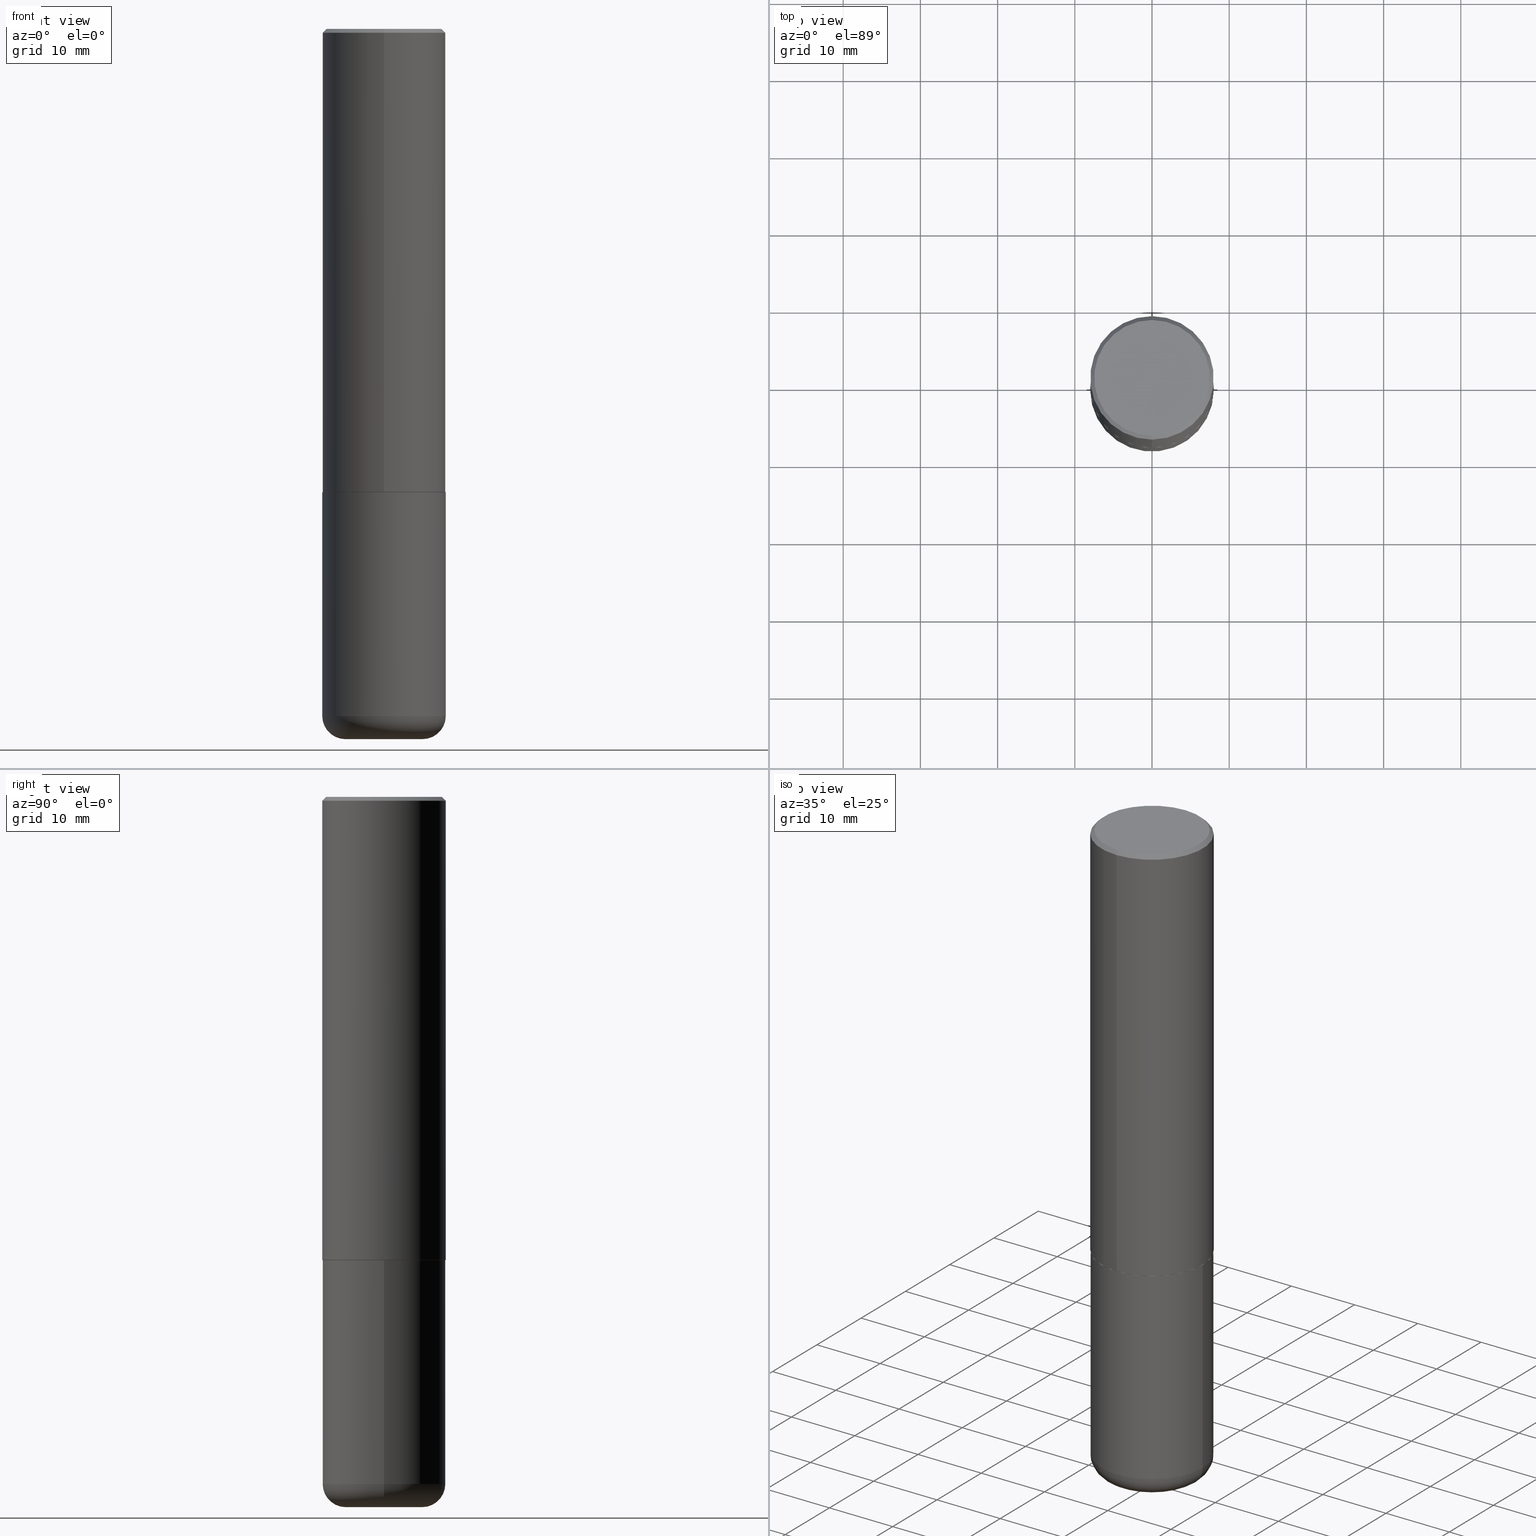
[diagram: canonical four-view strip — front | top / right | iso, engineering-drawing reading convention]
A machine part, canonical four-view strip (front | top / right | iso — engineering-drawing reading convention). The complete STEP part file that produces these views, byte-faithful:
ISO-10303-21;
HEADER;
FILE_DESCRIPTION (( 'STEP AP203' ),
    '1' );
FILE_NAME ('46645.STEP',
    '2024-03-05T02:24:14',
    ( '' ),
    ( '' ),
    'SwSTEP 2.0',
    'SolidWorks 2023',
    '' );
FILE_SCHEMA (( 'CONFIG_CONTROL_DESIGN' ));
ENDSEC;

DATA;
#1 = ORIENTED_EDGE ( 'NONE', *, *, #219, .T. ) ;
#2 = VECTOR ( 'NONE', #213, 39.37007874015748143 ) ;
#3 = ORIENTED_EDGE ( 'NONE', *, *, #145, .F. ) ;
#4 = FACE_OUTER_BOUND ( 'NONE', #171, .T. ) ;
#5 = DIRECTION ( 'NONE',  ( -2.446834136232167657E-29, 3.489526108506037109E-15, 1.000000000000000000 ) ) ;
#6 = EDGE_CURVE ( 'NONE', #330, #175, #328, .T. ) ;
#7 = CONICAL_SURFACE ( 'NONE', #73, 0.3149500000000000077, 0.7853981633974471688 ) ;
#8 = PERSON_AND_ORGANIZATION ( #403, #180 ) ;
#9 = DIRECTION ( 'NONE',  ( -2.446834136232167096E-29, 3.489526108506037109E-15, 1.000000000000000000 ) ) ;
#10 = APPROVAL ( #120, 'UNSPECIFIED' ) ;
#11 = DIRECTION ( 'NONE',  ( -2.445468806185136597E-29, 3.491481338843145583E-15, 1.000000000000000000 ) ) ;
#12 = DIRECTION ( 'NONE',  ( -6.982962677686265922E-15, -1.000000000000000000, 3.489526108506037109E-15 ) ) ;
#13 = PERSON_AND_ORGANIZATION ( #403, #180 ) ;
#14 = DIRECTION ( 'NONE',  ( 1.000000000000000000, -6.982962677686273021E-15, 0.000000000000000000 ) ) ;
#15 = DIRECTION ( 'NONE',  ( 1.000000000000000000, -6.982962677686266711E-15, 0.000000000000000000 ) ) ;
#16 = DATE_AND_TIME ( #192, #271 ) ;
#17 = CARTESIAN_POINT ( 'NONE',  ( 5.776686413970529753E-29, -8.247577218615278049E-15, -2.362199999999999633 ) ) ;
#18 = CARTESIAN_POINT ( 'NONE',  ( 8.568678149992099474E-29, -1.223380146317249786E-14, -3.503899999999999793 ) ) ;
#19 = AXIS2_PLACEMENT_3D ( 'NONE', #115, #251, #396 ) ;
#20 = SECURITY_CLASSIFICATION ( '', '', #402 ) ;
#21 = ORIENTED_EDGE ( 'NONE', *, *, #219, .F. ) ;
#22 = DIRECTION ( 'NONE',  ( 1.000000000000000000, -6.982962677686266711E-15, 0.000000000000000000 ) ) ;
#23 = FACE_OUTER_BOUND ( 'NONE', #67, .T. ) ;
#24 = LINE ( 'NONE', #164, #405 ) ;
#25 = ORIENTED_EDGE ( 'NONE', *, *, #183, .F. ) ;
#26 = DIRECTION ( 'NONE',  ( -6.982962677686267499E-15, -1.000000000000000000, 3.489526108506037503E-15 ) ) ;
#27 = APPLICATION_CONTEXT ( 'configuration controlled 3d designs of mechanical parts and assemblies' ) ;
#28 = ADVANCED_FACE ( 'NONE', ( #34 ), #7, .T. ) ;
#29 = EDGE_LOOP ( 'NONE', ( #1, #327, #72, #163 ) ) ;
#30 = ORIENTED_EDGE ( 'NONE', *, *, #394, .T. ) ;
#31 = CARTESIAN_POINT ( 'NONE',  ( 0.1968500000000000250, -1.402074161239241202E-14, -3.621999999999999442 ) ) ;
#32 = ORIENTED_EDGE ( 'NONE', *, *, #80, .T. ) ;
#33 = EDGE_LOOP ( 'NONE', ( #305, #381, #383, #273 ) ) ;
#34 = FACE_OUTER_BOUND ( 'NONE', #300, .T. ) ;
#35 = MANIFOLD_SOLID_BREP ( 'Body-Move/Copy2[2]', #338 ) ;
#36 = MANIFOLD_SOLID_BREP ( 'Body-Move/Copy2[1]', #313 ) ;
#37 = ORIENTED_EDGE ( 'NONE', *, *, #132, .T. ) ;
#38 = EDGE_CURVE ( 'NONE', #206, #243, #204, .T. ) ;
#39 = VECTOR ( 'NONE', #5, 39.37007874015748143 ) ;
#40 = CIRCLE ( 'NONE', #113, 0.3149500000000000077 ) ;
#41 = DIRECTION ( 'NONE',  ( 1.000000000000000000, -6.982962677686267499E-15, 0.000000000000000000 ) ) ;
#42 = DIRECTION ( 'NONE',  ( -2.446834136232167657E-29, 3.489526108506037109E-15, 1.000000000000000000 ) ) ;
#43 = ADVANCED_FACE ( 'NONE', ( #53 ), #247, .T. ) ;
#44 = TOROIDAL_SURFACE ( 'NONE', #411, 0.1968500000000000250, 0.1180999999999997468 ) ;
#45 = CC_DESIGN_PERSON_AND_ORGANIZATION_ASSIGNMENT ( #186, #83, ( #118 ) ) ;
#46 = DIRECTION ( 'NONE',  ( -6.982962677686265922E-15, -1.000000000000000000, 3.469564049740290009E-15 ) ) ;
#47 = EDGE_CURVE ( 'NONE', #299, #357, #418, .T. ) ;
#48 = LINE ( 'NONE', #138, #134 ) ;
#49 = VECTOR ( 'NONE', #57, 39.37007874015748143 ) ;
#50 = CARTESIAN_POINT ( 'NONE',  ( 5.776686413970529753E-29, -8.247577218615278049E-15, -2.362199999999999633 ) ) ;
#51 = CARTESIAN_POINT ( 'NONE',  ( 2.199284095337289871E-15, 0.3149499999999999522, -0.02000000000000116615 ) ) ;
#52 = FACE_OUTER_BOUND ( 'NONE', #415, .T. ) ;
#53 = FACE_OUTER_BOUND ( 'NONE', #246, .T. ) ;
#54 = DIRECTION ( 'NONE',  ( -2.446834136232167376E-29, 3.489526108506037109E-15, 1.000000000000000000 ) ) ;
#55 = VERTEX_POINT ( 'NONE', #81 ) ;
#56 = SHAPE_DEFINITION_REPRESENTATION ( #208, #315 ) ;
#57 = DIRECTION ( 'NONE',  ( -2.445468806185136877E-29, 3.491481338843145188E-15, 1.000000000000000000 ) ) ;
#58 = CARTESIAN_POINT ( 'NONE',  ( 5.779911596607625621E-29, -8.242958573512960510E-15, -2.362199999999999633 ) ) ;
#59 = CIRCLE ( 'NONE', #94, 0.3149500000000000077 ) ;
#60 = CIRCLE ( 'NONE', #412, 0.3149500000000000077 ) ;
#61 = CARTESIAN_POINT ( 'NONE',  ( 2.237854346276465567E-15, 0.3149499999999920141, -2.361200000000000632 ) ) ;
#62 = DIRECTION ( 'NONE',  ( -2.445468806185136597E-29, 3.491481338843145583E-15, 1.000000000000000000 ) ) ;
#63 = DIRECTION ( 'NONE',  ( 6.982962677686265922E-15, 1.000000000000000000, -3.483117034309591132E-15 ) ) ;
#64 = EDGE_LOOP ( 'NONE', ( #355, #170, #37, #296 ) ) ;
#65 = CARTESIAN_POINT ( 'NONE',  ( -2.092108864420428031E-15, -0.2949499999999999345, 1.067075642926828942E-15 ) ) ;
#66 = CARTESIAN_POINT ( 'NONE',  ( 0.000000000000000000, 0.000000000000000000, 0.000000000000000000 ) ) ;
#67 = EDGE_LOOP ( 'NONE', ( #178, #75, #21, #131 ) ) ;
#68 = EDGE_CURVE ( 'NONE', #294, #96, #77, .T. ) ;
#69 =( CONVERSION_BASED_UNIT ( 'INCH', #207 ) LENGTH_UNIT ( ) NAMED_UNIT ( #74 ) );
#70 = ORIENTED_EDGE ( 'NONE', *, *, #394, .F. ) ;
#71 =( NAMED_UNIT ( * ) PLANE_ANGLE_UNIT ( ) SI_UNIT ( $, .RADIAN. ) );
#72 = ORIENTED_EDGE ( 'NONE', *, *, #47, .F. ) ;
#73 = AXIS2_PLACEMENT_3D ( 'NONE', #137, #98, #63 ) ;
#74 = DIMENSIONAL_EXPONENTS ( 1.000000000000000000, 0.000000000000000000, 0.000000000000000000, 0.000000000000000000, 0.000000000000000000, 0.000000000000000000, 0.000000000000000000 ) ;
#75 = ORIENTED_EDGE ( 'NONE', *, *, #110, .T. ) ;
#76 = DIRECTION ( 'NONE',  ( -2.445468806185136597E-29, 3.491481338843145583E-15, 1.000000000000000000 ) ) ;
#77 = CIRCLE ( 'NONE', #283, 0.3139500000000000068 ) ;
#78 = LOCAL_TIME ( 21, 24, 14.00000000000000000, #263 ) ;
#79 = PERSON_AND_ORGANIZATION ( #403, #180 ) ;
#80 = EDGE_CURVE ( 'NONE', #243, #142, #157, .T. ) ;
#81 = CARTESIAN_POINT ( 'NONE',  ( 0.3149499999999998967, -1.443308555850978615E-14, -3.503899999999999793 ) ) ;
#82 = AXIS2_PLACEMENT_3D ( 'NONE', #377, #256, #404 ) ;
#83 = PERSON_AND_ORGANIZATION_ROLE ( 'design_supplier' ) ;
#84 = CIRCLE ( 'NONE', #149, 0.3149500000000000077 ) ;
#85 = LINE ( 'NONE', #51, #226 ) ;
#86 = CC_DESIGN_PERSON_AND_ORGANIZATION_ASSIGNMENT ( #340, #259, ( #250 ) ) ;
#87 = COORDINATED_UNIVERSAL_TIME_OFFSET ( 5, 0, .BEHIND. ) ;
#88 = CYLINDRICAL_SURFACE ( 'NONE', #276, 0.3149500000000001743 ) ;
#89 = ORIENTED_EDGE ( 'NONE', *, *, #183, .T. ) ;
#90 = APPROVAL_ROLE ( '' ) ;
#91 = CARTESIAN_POINT ( 'NONE',  ( 2.234301632597693067E-15, 0.3139499999999917357, -2.362200000000000966 ) ) ;
#92 = FACE_OUTER_BOUND ( 'NONE', #304, .T. ) ;
#93 = CARTESIAN_POINT ( 'NONE',  ( 0.000000000000000000, 0.000000000000000000, 0.000000000000000000 ) ) ;
#94 = AXIS2_PLACEMENT_3D ( 'NONE', #146, #281, #324 ) ;
#95 = CONICAL_SURFACE ( 'NONE', #287, 0.3139500000000000068, 0.7853981633974141952 ) ;
#96 = VERTEX_POINT ( 'NONE', #91 ) ;
#97 = PERSON_AND_ORGANIZATION ( #403, #180 ) ;
#98 = DIRECTION ( 'NONE',  ( 2.446834136232167376E-29, -3.489526108506037109E-15, -1.000000000000000000 ) ) ;
#99 = FACE_OUTER_BOUND ( 'NONE', #33, .T. ) ;
#100 = CARTESIAN_POINT ( 'NONE',  ( 1.587752295914809676E-28, -2.593055815129891410E-15, -3.621999999999999886 ) ) ;
#101 = EDGE_LOOP ( 'NONE', ( #274, #389 ) ) ;
#102 = ORIENTED_EDGE ( 'NONE', *, *, #254, .T. ) ;
#103 = LINE ( 'NONE', #384, #2 ) ;
#104 = EDGE_LOOP ( 'NONE', ( #360, #89 ) ) ;
#105 = AXIS2_PLACEMENT_3D ( 'NONE', #140, #278, #391 ) ;
#106 = AXIS2_PLACEMENT_3D ( 'NONE', #354, #176, #245 ) ;
#107 = DIRECTION ( 'NONE',  ( 0.000000000000000000, 0.000000000000000000, 1.000000000000000000 ) ) ;
#108 = ORIENTED_EDGE ( 'NONE', *, *, #205, .T. ) ;
#109 = ORIENTED_EDGE ( 'NONE', *, *, #344, .F. ) ;
#110 = EDGE_CURVE ( 'NONE', #96, #173, #24, .T. ) ;
#111 = CARTESIAN_POINT ( 'NONE',  ( 2.129454468560426967E-15, 0.2949499999999999345, -9.913958084808819386E-16 ) ) ;
#112 = AXIS2_PLACEMENT_3D ( 'NONE', #400, #258, #26 ) ;
#113 = AXIS2_PLACEMENT_3D ( 'NONE', #409, #348, #128 ) ;
#114 = CARTESIAN_POINT ( 'NONE',  ( -0.1968500000000000250, -1.083509808782873928E-14, -3.503899999999999793 ) ) ;
#115 = CARTESIAN_POINT ( 'NONE',  ( 2.059624841783564063E-15, 0.2949499999999999345, -1.010315767092368542E-15 ) ) ;
#116 = LINE ( 'NONE', #252, #199 ) ;
#117 = AXIS2_PLACEMENT_3D ( 'NONE', #336, #211, #41 ) ;
#118 = PRODUCT_DEFINITION_FORMATION_WITH_SPECIFIED_SOURCE ( 'ANY', '', #395, .NOT_KNOWN. ) ;
#119 = APPROVAL ( #284, 'UNSPECIFIED' ) ;
#120 = APPROVAL_STATUS ( 'not_yet_approved' ) ;
#121 = FACE_OUTER_BOUND ( 'NONE', #139, .T. ) ;
#122 = ADVANCED_FACE ( 'NONE', ( #121 ), #326, .T. ) ;
#123 = COORDINATED_UNIVERSAL_TIME_OFFSET ( 5, 0, .BEHIND. ) ;
#124 = CARTESIAN_POINT ( 'NONE',  ( 0.3149500000000000077, -1.044686131395256792E-14, -2.362199999999999633 ) ) ;
#125 = CARTESIAN_POINT ( 'NONE',  ( -0.1968500000000000250, -1.062169457542108764E-14, -3.621999999999999442 ) ) ;
#126 = CC_DESIGN_DATE_AND_TIME_ASSIGNMENT ( #374, #376, ( #250 ) ) ;
#127 = DIRECTION ( 'NONE',  ( 1.000000000000000000, -6.982962677686269866E-15, 4.883557194083114022E-29 ) ) ;
#128 = DIRECTION ( 'NONE',  ( 1.000000000000000000, -6.982962677686263555E-15, 0.000000000000000000 ) ) ;
#129 = ORIENTED_EDGE ( 'NONE', *, *, #47, .T. ) ;
#130 = AXIS2_PLACEMENT_3D ( 'NONE', #136, #382, #417 ) ;
#131 = ORIENTED_EDGE ( 'NONE', *, *, #317, .F. ) ;
#132 = EDGE_CURVE ( 'NONE', #175, #55, #295, .T. ) ;
#133 = EDGE_LOOP ( 'NONE', ( #301, #32 ) ) ;
#134 = VECTOR ( 'NONE', #42, 39.37007874015748143 ) ;
#135 = CC_DESIGN_APPROVAL ( #10, ( #20 ) ) ;
#136 = CARTESIAN_POINT ( 'NONE',  ( 5.779911596607626742E-29, -8.242958573512960510E-15, -2.362200000000000077 ) ) ;
#137 = CARTESIAN_POINT ( 'NONE',  ( 4.893668272464352339E-31, -6.979052217012096355E-17, -0.02000000000000006981 ) ) ;
#138 = CARTESIAN_POINT ( 'NONE',  ( -2.199284095337290265E-15, -0.3149500000000001743, 1.099026247873976983E-15 ) ) ;
#139 = EDGE_LOOP ( 'NONE', ( #353, #385, #108, #70 ) ) ;
#140 = CARTESIAN_POINT ( 'NONE',  ( 0.000000000000000000, 0.000000000000000000, 0.000000000000000000 ) ) ;
#141 = APPROVAL_PERSON_ORGANIZATION ( #79, #174, #90 ) ;
#142 = VERTEX_POINT ( 'NONE', #124 ) ;
#143 = CARTESIAN_POINT ( 'NONE',  ( -0.3149500000000000077, 2.237854346276435590E-15, -1.549218606675782676E-29 ) ) ;
#144 = FACE_OUTER_BOUND ( 'NONE', #104, .T. ) ;
#145 = EDGE_CURVE ( 'NONE', #215, #357, #85, .T. ) ;
#146 = CARTESIAN_POINT ( 'NONE',  ( 8.568678149992099474E-29, -1.223380146317249786E-14, -3.503899999999999793 ) ) ;
#147 = CIRCLE ( 'NONE', #220, 0.2949499999999999345 ) ;
#148 = APPROVAL_PERSON_ORGANIZATION ( #13, #10, #255 ) ;
#149 = AXIS2_PLACEMENT_3D ( 'NONE', #358, #356, #410 ) ;
#150 = CALENDAR_DATE ( 2024, 4, 3 ) ;
#151 = ADVANCED_FACE ( 'NONE', ( #233 ), #44, .T. ) ;
#152 = DIRECTION ( 'NONE',  ( -2.446834136232167376E-29, 3.489526108506037109E-15, 1.000000000000000000 ) ) ;
#153 = DIRECTION ( 'NONE',  ( 1.000000000000000000, -6.982962677686269866E-15, 4.883557194083114022E-29 ) ) ;
#154 = CALENDAR_DATE ( 2024, 4, 3 ) ;
#155 = CARTESIAN_POINT ( 'NONE',  ( 0.1968500000000000250, -1.360839766627503947E-14, -3.503899999999999793 ) ) ;
#156 = CARTESIAN_POINT ( 'NONE',  ( 2.199284095337289871E-15, 0.3149499999999999522, -0.02000000000000116615 ) ) ;
#157 = CIRCLE ( 'NONE', #179, 0.3149500000000000077 ) ;
#158 = COORDINATED_UNIVERSAL_TIME_OFFSET ( 5, 0, .BEHIND. ) ;
#159 = LOCAL_TIME ( 21, 24, 14.00000000000000000, #158 ) ;
#160 = DIRECTION ( 'NONE',  ( -6.982962677686266711E-15, -1.000000000000000000, 3.491481338843145583E-15 ) ) ;
#161 = CARTESIAN_POINT ( 'NONE',  ( -2.192301132659545875E-15, -0.3139500000000082780, -2.362199999999998745 ) ) ;
#162 = APPLICATION_CONTEXT ( 'configuration controlled 3d designs of mechanical parts and assemblies' ) ;
#163 = ORIENTED_EDGE ( 'NONE', *, *, #205, .F. ) ;
#164 = CARTESIAN_POINT ( 'NONE',  ( 2.230748918918891775E-15, 0.3139499999999917357, -2.362200000000000966 ) ) ;
#165 = CARTESIAN_POINT ( 'NONE',  ( 5.779911596607626742E-29, -8.242958573512960510E-15, -2.362200000000000077 ) ) ;
#166 = ORIENTED_EDGE ( 'NONE', *, *, #275, .F. ) ;
#167 = ADVANCED_FACE ( 'NONE', ( #265 ), #88, .T. ) ;
#168 = UNCERTAINTY_MEASURE_WITH_UNIT (LENGTH_MEASURE( 1.000000000000000082E-05 ), #69, 'distance_accuracy_value', 'NONE');
#169 = DIRECTION ( 'NONE',  ( -6.982962677686265922E-15, -1.000000000000000000, 3.469564049740290009E-15 ) ) ;
#170 = ORIENTED_EDGE ( 'NONE', *, *, #6, .T. ) ;
#171 = EDGE_LOOP ( 'NONE', ( #231, #321, #109, #240 ) ) ;
#172 = AXIS2_PLACEMENT_3D ( 'NONE', #239, #270, #169 ) ;
#173 = VERTEX_POINT ( 'NONE', #61 ) ;
#174 = APPROVAL ( #200, 'UNSPECIFIED' ) ;
#175 = VERTEX_POINT ( 'NONE', #31 ) ;
#176 = DIRECTION ( 'NONE',  ( -2.445468806185136597E-29, 3.491481338843145583E-15, 1.000000000000000000 ) ) ;
#177 = ORIENTED_EDGE ( 'NONE', *, *, #132, .F. ) ;
#178 = ORIENTED_EDGE ( 'NONE', *, *, #68, .T. ) ;
#179 = AXIS2_PLACEMENT_3D ( 'NONE', #17, #11, #22 ) ;
#180 = ORGANIZATION ( 'UNSPECIFIED', 'UNSPECIFIED', '' ) ;
#181 = CC_DESIGN_PERSON_AND_ORGANIZATION_ASSIGNMENT ( #350, #370, ( #118 ) ) ;
#182 = AXIS2_PLACEMENT_3D ( 'NONE', #155, #160, #14 ) ;
#183 = EDGE_CURVE ( 'NONE', #416, #215, #147, .T. ) ;
#184 = DIRECTION ( 'NONE',  ( -1.000000000000000000, 7.105427357601005014E-15, 0.000000000000000000 ) ) ;
#185 = LINE ( 'NONE', #310, #39 ) ;
#186 = PERSON_AND_ORGANIZATION ( #403, #180 ) ;
#187 = EDGE_CURVE ( 'NONE', #215, #416, #362, .T. ) ;
#188 = AXIS2_PLACEMENT_3D ( 'NONE', #100, #399, #306 ) ;
#189 = AXIS2_PLACEMENT_3D ( 'NONE', #261, #369, #316 ) ;
#190 = APPROVAL_ROLE ( '' ) ;
#191 = DIRECTION ( 'NONE',  ( -2.445468806185136597E-29, 3.491481338843145583E-15, 1.000000000000000000 ) ) ;
#192 = CALENDAR_DATE ( 2024, 4, 3 ) ;
#193 = DIRECTION ( 'NONE',  ( -6.982962677686266711E-15, -1.000000000000000000, 3.480615376543096919E-15 ) ) ;
#194 = DIRECTION ( 'NONE',  ( -2.446834136232167376E-29, 3.489526108506037109E-15, 1.000000000000000000 ) ) ;
#195 = FACE_OUTER_BOUND ( 'NONE', #101, .T. ) ;
#196 = DATE_AND_TIME ( #346, #159 ) ;
#197 = EDGE_LOOP ( 'NONE', ( #102, #413, #166, #177 ) ) ;
#198 = DESIGN_CONTEXT ( 'detailed design', #27, 'design' ) ;
#199 = VECTOR ( 'NONE', #368, 39.37007874015748143 ) ;
#200 = APPROVAL_STATUS ( 'not_yet_approved' ) ;
#201 = DIRECTION ( 'NONE',  ( 2.446834136232167376E-29, -3.489526108506037109E-15, -1.000000000000000000 ) ) ;
#202 = ADVANCED_FACE ( 'NONE', ( #195 ), #225, .T. ) ;
#203 = CARTESIAN_POINT ( 'NONE',  ( -2.192301132659545875E-15, -0.3139500000000082780, -2.362199999999998745 ) ) ;
#204 = LINE ( 'NONE', #143, #49 ) ;
#205 = EDGE_CURVE ( 'NONE', #268, #299, #48, .T. ) ;
#206 = VERTEX_POINT ( 'NONE', #390 ) ;
#207 = LENGTH_MEASURE_WITH_UNIT ( LENGTH_MEASURE( 0.02539999999999999897 ), #298 );
#208 = PRODUCT_DEFINITION_SHAPE ( 'NONE', 'NONE',  #250 ) ;
#209 = CARTESIAN_POINT ( 'NONE',  ( -9.258800117337119194E-46, 1.320433790932734238E-31, 3.783991722297353878E-17 ) ) ;
#210 = CYLINDRICAL_SURFACE ( 'NONE', #106, 0.3149500000000000077 ) ;
#211 = DIRECTION ( 'NONE',  ( -2.445468806185136597E-29, 3.491481338843145583E-15, 1.000000000000000000 ) ) ;
#212 = ORIENTED_EDGE ( 'NONE', *, *, #317, .T. ) ;
#213 = DIRECTION ( 'NONE',  ( -4.851104656540957964E-15, -0.7071067811865491270, -0.7071067811865459074 ) ) ;
#214 = CC_DESIGN_PERSON_AND_ORGANIZATION_ASSIGNMENT ( #97, #237, ( #395 ) ) ;
#215 = VERTEX_POINT ( 'NONE', #111 ) ;
#216 = CONICAL_SURFACE ( 'NONE', #277, 0.3139500000000000068, 0.7853981633974141952 ) ;
#217 = ORIENTED_EDGE ( 'NONE', *, *, #145, .T. ) ;
#218 = DIRECTION ( 'NONE',  ( 1.000000000000000000, -6.982962677686267499E-15, 0.000000000000000000 ) ) ;
#219 = EDGE_CURVE ( 'NONE', #268, #173, #262, .T. ) ;
#220 = AXIS2_PLACEMENT_3D ( 'NONE', #209, #363, #227 ) ;
#221 = CC_DESIGN_APPROVAL ( #174, ( #250 ) ) ;
#222 = CARTESIAN_POINT ( 'NONE',  ( -2.199284095337233467E-15, -0.3149500000000085564, -2.361199999999998411 ) ) ;
#223 = CALENDAR_DATE ( 2024, 4, 3 ) ;
#224 = ADVANCED_FACE ( 'NONE', ( #4 ), #249, .T. ) ;
#225 = PLANE ( 'NONE',  #188 ) ;
#226 = VECTOR ( 'NONE', #375, 39.37007874015748143 ) ;
#227 = DIRECTION ( 'NONE',  ( -6.982962677686267499E-15, -1.000000000000000000, 3.489526108506037503E-15 ) ) ;
#228 = APPROVAL_DATE_TIME ( #232, #174 ) ;
#229 = FACE_OUTER_BOUND ( 'NONE', #197, .T. ) ;
#230 = PERSON_AND_ORGANIZATION_ROLE ( 'classification_officer' ) ;
#231 = ORIENTED_EDGE ( 'NONE', *, *, #275, .T. ) ;
#232 = DATE_AND_TIME ( #223, #322 ) ;
#233 = FACE_OUTER_BOUND ( 'NONE', #64, .T. ) ;
#234 = FACE_OUTER_BOUND ( 'NONE', #133, .T. ) ;
#235 = AXIS2_PLACEMENT_3D ( 'NONE', #280, #76, #218 ) ;
#236 = DIRECTION ( 'NONE',  ( -2.446834136232167376E-29, 3.489526108506037109E-15, 1.000000000000000000 ) ) ;
#237 = PERSON_AND_ORGANIZATION_ROLE ( 'design_owner' ) ;
#238 = ORIENTED_EDGE ( 'NONE', *, *, #401, .T. ) ;
#239 = CARTESIAN_POINT ( 'NONE',  ( 5.777464762471393692E-29, -8.239469047404454280E-15, -2.361199999999999743 ) ) ;
#240 = ORIENTED_EDGE ( 'NONE', *, *, #266, .F. ) ;
#241 = AXIS2_PLACEMENT_3D ( 'NONE', #260, #371, #285 ) ;
#242 =( NAMED_UNIT ( * ) SI_UNIT ( $, .STERADIAN. ) SOLID_ANGLE_UNIT ( ) );
#243 = VERTEX_POINT ( 'NONE', #364 ) ;
#244 = EDGE_CURVE ( 'NONE', #330, #206, #387, .T. ) ;
#245 = DIRECTION ( 'NONE',  ( 1.000000000000000000, -6.982962677686266711E-15, 4.876176775795936353E-29 ) ) ;
#246 = EDGE_LOOP ( 'NONE', ( #303, #349, #217, #30 ) ) ;
#247 = CONICAL_SURFACE ( 'NONE', #269, 0.3149500000000000077, 0.7853981633974471688 ) ;
#248 = CC_DESIGN_SECURITY_CLASSIFICATION ( #20, ( #118 ) ) ;
#249 = CYLINDRICAL_SURFACE ( 'NONE', #105, 0.3149500000000000077 ) ;
#250 = PRODUCT_DEFINITION ( 'UNKNOWN', '', #118, #198 ) ;
#251 = DIRECTION ( 'NONE',  ( 2.446834136232167096E-29, -3.489526108506037109E-15, -1.000000000000000000 ) ) ;
#252 = CARTESIAN_POINT ( 'NONE',  ( 0.3149500000000000077, -2.199284095337289871E-15, 1.535751875536930130E-29 ) ) ;
#253 = LOCAL_TIME ( 21, 24, 14.00000000000000000, #123 ) ;
#254 = EDGE_CURVE ( 'NONE', #175, #330, #398, .T. ) ;
#255 = APPROVAL_ROLE ( '' ) ;
#256 = DIRECTION ( 'NONE',  ( -2.446834136232167376E-29, 3.489526108506037109E-15, 1.000000000000000000 ) ) ;
#257 = CARTESIAN_POINT ( 'NONE',  ( -2.160713844398143363E-15, -0.3149500000000000632, -0.01999999999999896999 ) ) ;
#258 = DIRECTION ( 'NONE',  ( -2.446834136232167376E-29, 3.489526108506037109E-15, 1.000000000000000000 ) ) ;
#259 = PERSON_AND_ORGANIZATION_ROLE ( 'creator' ) ;
#260 = CARTESIAN_POINT ( 'NONE',  ( 0.000000000000000000, 0.000000000000000000, 0.000000000000000000 ) ) ;
#261 = CARTESIAN_POINT ( 'NONE',  ( 5.776686413970529753E-29, -8.247577218615278049E-15, -2.362199999999999633 ) ) ;
#262 = CIRCLE ( 'NONE', #380, 0.3149500000000002853 ) ;
#263 = COORDINATED_UNIVERSAL_TIME_OFFSET ( 5, 0, .BEHIND. ) ;
#264 = ADVANCED_FACE ( 'NONE', ( #144 ), #393, .F. ) ;
#265 = FACE_OUTER_BOUND ( 'NONE', #29, .T. ) ;
#266 = EDGE_CURVE ( 'NONE', #55, #142, #116, .T. ) ;
#267 = MECHANICAL_CONTEXT ( 'NONE', #162, 'mechanical' ) ;
#268 = VERTEX_POINT ( 'NONE', #222 ) ;
#269 = AXIS2_PLACEMENT_3D ( 'NONE', #379, #201, #345 ) ;
#270 = DIRECTION ( 'NONE',  ( -2.446834136232167376E-29, 3.489526108506037109E-15, 1.000000000000000000 ) ) ;
#271 = LOCAL_TIME ( 21, 24, 14.00000000000000000, #318 ) ;
#272 = EDGE_CURVE ( 'NONE', #173, #357, #185, .T. ) ;
#273 = ORIENTED_EDGE ( 'NONE', *, *, #80, .F. ) ;
#274 = ORIENTED_EDGE ( 'NONE', *, *, #254, .F. ) ;
#275 = EDGE_CURVE ( 'NONE', #55, #206, #59, .T. ) ;
#276 = AXIS2_PLACEMENT_3D ( 'NONE', #93, #236, #352 ) ;
#277 = AXIS2_PLACEMENT_3D ( 'NONE', #372, #54, #342 ) ;
#278 = DIRECTION ( 'NONE',  ( -2.445468806185136597E-29, 3.491481338843145583E-15, 1.000000000000000000 ) ) ;
#279 = CC_DESIGN_DATE_AND_TIME_ASSIGNMENT ( #16, #319, ( #20 ) ) ;
#280 = CARTESIAN_POINT ( 'NONE',  ( 8.857488016002563354E-29, -1.264614540928987041E-14, -3.621999999999999442 ) ) ;
#281 = DIRECTION ( 'NONE',  ( -2.445468806185136597E-29, 3.491481338843145583E-15, 1.000000000000000000 ) ) ;
#282 = AXIS2_PLACEMENT_3D ( 'NONE', #18, #62, #153 ) ;
#283 = AXIS2_PLACEMENT_3D ( 'NONE', #323, #152, #193 ) ;
#284 = APPROVAL_STATUS ( 'not_yet_approved' ) ;
#285 = DIRECTION ( 'NONE',  ( -6.982962677686264344E-15, -1.000000000000000000, 3.489526108506037109E-15 ) ) ;
#286 = DIRECTION ( 'NONE',  ( -4.937700262164378437E-15, -0.7071067811865208164, 0.7071067811865739960 ) ) ;
#287 = AXIS2_PLACEMENT_3D ( 'NONE', #165, #194, #291 ) ;
#288 = APPROVAL_DATE_TIME ( #341, #10 ) ;
#289 = PLANE ( 'NONE',  #189 ) ;
#290 = DIRECTION ( 'NONE',  ( 5.024295867787889629E-15, 0.7071067811865257013, 0.7071067811865691111 ) ) ;
#291 = DIRECTION ( 'NONE',  ( -6.982962677686266711E-15, -1.000000000000000000, 3.480615376543096919E-15 ) ) ;
#292 = ADVANCED_FACE ( 'NONE', ( #229 ), #302, .T. ) ;
#293 = APPLICATION_PROTOCOL_DEFINITION ( 'international standard', 'config_control_design', 1994, #162 ) ;
#294 = VERTEX_POINT ( 'NONE', #161 ) ;
#295 = CIRCLE ( 'NONE', #182, 0.1180999999999997191 ) ;
#296 = ORIENTED_EDGE ( 'NONE', *, *, #386, .F. ) ;
#297 = CC_DESIGN_PERSON_AND_ORGANIZATION_ASSIGNMENT ( #312, #230, ( #20 ) ) ;
#298 =( LENGTH_UNIT ( ) NAMED_UNIT ( * ) SI_UNIT ( $, .METRE. ) );
#299 = VERTEX_POINT ( 'NONE', #257 ) ;
#300 = EDGE_LOOP ( 'NONE', ( #25, #238, #129, #3 ) ) ;
#301 = ORIENTED_EDGE ( 'NONE', *, *, #344, .T. ) ;
#302 = TOROIDAL_SURFACE ( 'NONE', #282, 0.1968500000000000250, 0.1180999999999997468 ) ;
#303 = ORIENTED_EDGE ( 'NONE', *, *, #401, .F. ) ;
#304 = EDGE_LOOP ( 'NONE', ( #361, #329 ) ) ;
#305 = ORIENTED_EDGE ( 'NONE', *, *, #38, .F. ) ;
#306 = DIRECTION ( 'NONE',  ( -1.000000000000000000, 6.982962677686265922E-15, -4.876176775795935793E-29 ) ) ;
#307 = CIRCLE ( 'NONE', #172, 0.3149500000000002853 ) ;
#308 = CARTESIAN_POINT ( 'NONE',  ( 5.777464762471393692E-29, -8.239469047404454280E-15, -2.361199999999999743 ) ) ;
#309 = DIRECTION ( 'NONE',  ( -2.446834136232167376E-29, 3.489526108506037109E-15, 1.000000000000000000 ) ) ;
#310 = CARTESIAN_POINT ( 'NONE',  ( 2.237854346276435985E-15, 0.3149500000000001743, -1.099026247873976983E-15 ) ) ;
#311 = ADVANCED_FACE ( 'NONE', ( #52 ), #216, .T. ) ;
#312 = PERSON_AND_ORGANIZATION ( #403, #180 ) ;
#313 = CLOSED_SHELL ( 'NONE', ( #224, #292, #325, #414, #151, #202 ) ) ;
#314 = AXIS2_PLACEMENT_3D ( 'NONE', #58, #9, #12 ) ;
#315 = ADVANCED_BREP_SHAPE_REPRESENTATION ( '46645', ( #36, #35, #335 ), #339 ) ;
#316 = DIRECTION ( 'NONE',  ( -1.000000000000000000, 6.982962677686265922E-15, -4.876176775795935793E-29 ) ) ;
#317 = EDGE_CURVE ( 'NONE', #294, #268, #378, .T. ) ;
#318 = COORDINATED_UNIVERSAL_TIME_OFFSET ( 5, 0, .BEHIND. ) ;
#319 = DATE_TIME_ROLE ( 'classification_date' ) ;
#320 = PRODUCT_RELATED_PRODUCT_CATEGORY ( 'detail', '', ( #395 ) ) ;
#321 = ORIENTED_EDGE ( 'NONE', *, *, #38, .T. ) ;
#322 = LOCAL_TIME ( 21, 24, 14.00000000000000000, #87 ) ;
#323 = CARTESIAN_POINT ( 'NONE',  ( 5.779911596607626742E-29, -8.242958573512960510E-15, -2.362200000000000077 ) ) ;
#324 = DIRECTION ( 'NONE',  ( 1.000000000000000000, -6.982962677686263555E-15, 0.000000000000000000 ) ) ;
#325 = ADVANCED_FACE ( 'NONE', ( #234 ), #289, .F. ) ;
#326 = CYLINDRICAL_SURFACE ( 'NONE', #241, 0.3149500000000001743 ) ;
#327 = ORIENTED_EDGE ( 'NONE', *, *, #272, .T. ) ;
#328 = CIRCLE ( 'NONE', #117, 0.1968500000000000250 ) ;
#329 = ORIENTED_EDGE ( 'NONE', *, *, #388, .F. ) ;
#330 = VERTEX_POINT ( 'NONE', #125 ) ;
#331 = ADVANCED_FACE ( 'NONE', ( #92 ), #351, .F. ) ;
#332 = DIRECTION ( 'NONE',  ( 1.000000000000000000, 0.000000000000000000, 0.000000000000000000 ) ) ;
#333 = ORIENTED_EDGE ( 'NONE', *, *, #110, .F. ) ;
#334 = VECTOR ( 'NONE', #286, 39.37007874015748854 ) ;
#335 = AXIS2_PLACEMENT_3D ( 'NONE', #66, #107, #332 ) ;
#336 = CARTESIAN_POINT ( 'NONE',  ( 8.857488016002563354E-29, -1.264614540928987041E-14, -3.621999999999999442 ) ) ;
#337 = ADVANCED_FACE ( 'NONE', ( #23 ), #95, .T. ) ;
#338 = CLOSED_SHELL ( 'NONE', ( #337, #167, #28, #43, #122, #311, #331, #264 ) ) ;
#339 =( GEOMETRIC_REPRESENTATION_CONTEXT ( 3 ) GLOBAL_UNCERTAINTY_ASSIGNED_CONTEXT ( ( #168 ) ) GLOBAL_UNIT_ASSIGNED_CONTEXT ( ( #69, #71, #242 ) ) REPRESENTATION_CONTEXT ( 'NONE', 'WORKASPACE' ) );
#340 = PERSON_AND_ORGANIZATION ( #403, #180 ) ;
#341 = DATE_AND_TIME ( #154, #78 ) ;
#342 = DIRECTION ( 'NONE',  ( -6.982962677686266711E-15, -1.000000000000000000, 3.480615376543096919E-15 ) ) ;
#343 = APPROVAL_PERSON_ORGANIZATION ( #8, #119, #190 ) ;
#344 = EDGE_CURVE ( 'NONE', #142, #243, #60, .T. ) ;
#345 = DIRECTION ( 'NONE',  ( 6.982962677686265922E-15, 1.000000000000000000, -3.483117034309591132E-15 ) ) ;
#346 = CALENDAR_DATE ( 2024, 4, 3 ) ;
#347 = CARTESIAN_POINT ( 'NONE',  ( 8.568678149992099474E-29, -1.223380146317249786E-14, -3.503899999999999793 ) ) ;
#348 = DIRECTION ( 'NONE',  ( -2.445468806185136597E-29, 3.491481338843145583E-15, 1.000000000000000000 ) ) ;
#349 = ORIENTED_EDGE ( 'NONE', *, *, #187, .F. ) ;
#350 = PERSON_AND_ORGANIZATION ( #403, #180 ) ;
#351 = PLANE ( 'NONE',  #314 ) ;
#352 = DIRECTION ( 'NONE',  ( -6.982962677686264344E-15, -1.000000000000000000, 3.489526108506037109E-15 ) ) ;
#353 = ORIENTED_EDGE ( 'NONE', *, *, #272, .F. ) ;
#354 = CARTESIAN_POINT ( 'NONE',  ( 0.000000000000000000, 0.000000000000000000, 0.000000000000000000 ) ) ;
#355 = ORIENTED_EDGE ( 'NONE', *, *, #244, .F. ) ;
#356 = DIRECTION ( 'NONE',  ( -2.446834136232167376E-29, 3.489526108506037109E-15, 1.000000000000000000 ) ) ;
#357 = VERTEX_POINT ( 'NONE', #156 ) ;
#358 = CARTESIAN_POINT ( 'NONE',  ( 4.893668272464352339E-31, -6.979052217012096355E-17, -0.02000000000000006981 ) ) ;
#359 = ORIENTED_EDGE ( 'NONE', *, *, #388, .T. ) ;
#360 = ORIENTED_EDGE ( 'NONE', *, *, #187, .T. ) ;
#361 = ORIENTED_EDGE ( 'NONE', *, *, #68, .F. ) ;
#362 = CIRCLE ( 'NONE', #112, 0.2949499999999999345 ) ;
#363 = DIRECTION ( 'NONE',  ( -2.446834136232167376E-29, 3.489526108506037109E-15, 1.000000000000000000 ) ) ;
#364 = CARTESIAN_POINT ( 'NONE',  ( -0.3149500000000000077, -8.002834994617451969E-15, -2.362199999999999633 ) ) ;
#365 = DIRECTION ( 'NONE',  ( 7.105427357601001859E-15, 1.000000000000000000, -3.491481338843145583E-15 ) ) ;
#366 = AXIS2_PLACEMENT_3D ( 'NONE', #114, #365, #184 ) ;
#367 = CC_DESIGN_APPROVAL ( #119, ( #118 ) ) ;
#368 = DIRECTION ( 'NONE',  ( -2.445468806185136877E-29, 3.491481338843145188E-15, 1.000000000000000000 ) ) ;
#369 = DIRECTION ( 'NONE',  ( 2.438088387897960049E-29, -3.491481338843145188E-15, -1.000000000000000000 ) ) ;
#370 = PERSON_AND_ORGANIZATION_ROLE ( 'creator' ) ;
#371 = DIRECTION ( 'NONE',  ( -2.446834136232167376E-29, 3.489526108506037109E-15, 1.000000000000000000 ) ) ;
#372 = CARTESIAN_POINT ( 'NONE',  ( 5.779911596607626742E-29, -8.242958573512960510E-15, -2.362200000000000077 ) ) ;
#373 = CIRCLE ( 'NONE', #130, 0.3139500000000000068 ) ;
#374 = DATE_AND_TIME ( #150, #253 ) ;
#375 = DIRECTION ( 'NONE',  ( 4.937700262164541731E-15, 0.7071067811865442421, -0.7071067811865507924 ) ) ;
#376 = DATE_TIME_ROLE ( 'creation_date' ) ;
#377 = CARTESIAN_POINT ( 'NONE',  ( 4.893668272464352339E-31, -6.979052217012096355E-17, -0.02000000000000006981 ) ) ;
#378 = LINE ( 'NONE', #203, #334 ) ;
#379 = CARTESIAN_POINT ( 'NONE',  ( 4.893668272464352339E-31, -6.979052217012096355E-17, -0.02000000000000006981 ) ) ;
#380 = AXIS2_PLACEMENT_3D ( 'NONE', #308, #309, #46 ) ;
#381 = ORIENTED_EDGE ( 'NONE', *, *, #386, .T. ) ;
#382 = DIRECTION ( 'NONE',  ( -2.446834136232167376E-29, 3.489526108506037109E-15, 1.000000000000000000 ) ) ;
#383 = ORIENTED_EDGE ( 'NONE', *, *, #266, .T. ) ;
#384 = CARTESIAN_POINT ( 'NONE',  ( -2.160713844398143363E-15, -0.3149500000000000632, -0.01999999999999896999 ) ) ;
#385 = ORIENTED_EDGE ( 'NONE', *, *, #407, .T. ) ;
#386 = EDGE_CURVE ( 'NONE', #206, #55, #40, .T. ) ;
#387 = CIRCLE ( 'NONE', #366, 0.1180999999999997191 ) ;
#388 = EDGE_CURVE ( 'NONE', #96, #294, #373, .T. ) ;
#389 = ORIENTED_EDGE ( 'NONE', *, *, #6, .F. ) ;
#390 = CARTESIAN_POINT ( 'NONE',  ( -0.3149499999999998967, -9.995947116896063452E-15, -3.503899999999999793 ) ) ;
#391 = DIRECTION ( 'NONE',  ( 1.000000000000000000, -6.982962677686266711E-15, 4.876176775795936353E-29 ) ) ;
#392 = ORIENTED_EDGE ( 'NONE', *, *, #407, .F. ) ;
#393 = PLANE ( 'NONE',  #19 ) ;
#394 = EDGE_CURVE ( 'NONE', #357, #299, #84, .T. ) ;
#395 = PRODUCT ( '46645', '46645', '', ( #267 ) ) ;
#396 = DIRECTION ( 'NONE',  ( 6.982962677686265922E-15, 1.000000000000000000, -3.489526108506037109E-15 ) ) ;
#397 = APPLICATION_PROTOCOL_DEFINITION ( 'international standard', 'config_control_design', 1994, #27 ) ;
#398 = CIRCLE ( 'NONE', #235, 0.1968500000000000250 ) ;
#399 = DIRECTION ( 'NONE',  ( 2.438088387897960049E-29, -3.491481338843145188E-15, -1.000000000000000000 ) ) ;
#400 = CARTESIAN_POINT ( 'NONE',  ( -9.258800117337119194E-46, 1.320433790932734238E-31, 3.783991722297353878E-17 ) ) ;
#401 = EDGE_CURVE ( 'NONE', #416, #299, #103, .T. ) ;
#402 = SECURITY_CLASSIFICATION_LEVEL ( 'unclassified' ) ;
#403 = PERSON ( 'UNSPECIFIED', 'UNSPECIFIED', 'UNSPECIFIED', ('UNSPECIFIED'), ('UNSPECIFIED'), ('UNSPECIFIED') ) ;
#404 = DIRECTION ( 'NONE',  ( -6.982962677686265922E-15, -1.000000000000000000, 3.483117034309591132E-15 ) ) ;
#405 = VECTOR ( 'NONE', #290, 39.37007874015748854 ) ;
#406 = APPROVAL_DATE_TIME ( #196, #119 ) ;
#407 = EDGE_CURVE ( 'NONE', #173, #268, #307, .T. ) ;
#408 = DIRECTION ( 'NONE',  ( -2.445468806185136597E-29, 3.491481338843145583E-15, 1.000000000000000000 ) ) ;
#409 = CARTESIAN_POINT ( 'NONE',  ( 8.568678149992099474E-29, -1.223380146317249786E-14, -3.503899999999999793 ) ) ;
#410 = DIRECTION ( 'NONE',  ( -6.982962677686265922E-15, -1.000000000000000000, 3.483117034309591132E-15 ) ) ;
#411 = AXIS2_PLACEMENT_3D ( 'NONE', #347, #408, #127 ) ;
#412 = AXIS2_PLACEMENT_3D ( 'NONE', #50, #191, #15 ) ;
#413 = ORIENTED_EDGE ( 'NONE', *, *, #244, .T. ) ;
#414 = ADVANCED_FACE ( 'NONE', ( #99 ), #210, .T. ) ;
#415 = EDGE_LOOP ( 'NONE', ( #333, #359, #212, #392 ) ) ;
#416 = VERTEX_POINT ( 'NONE', #65 ) ;
#417 = DIRECTION ( 'NONE',  ( -6.982962677686266711E-15, -1.000000000000000000, 3.480615376543096919E-15 ) ) ;
#418 = CIRCLE ( 'NONE', #82, 0.3149500000000000077 ) ;
ENDSEC;
END-ISO-10303-21;
